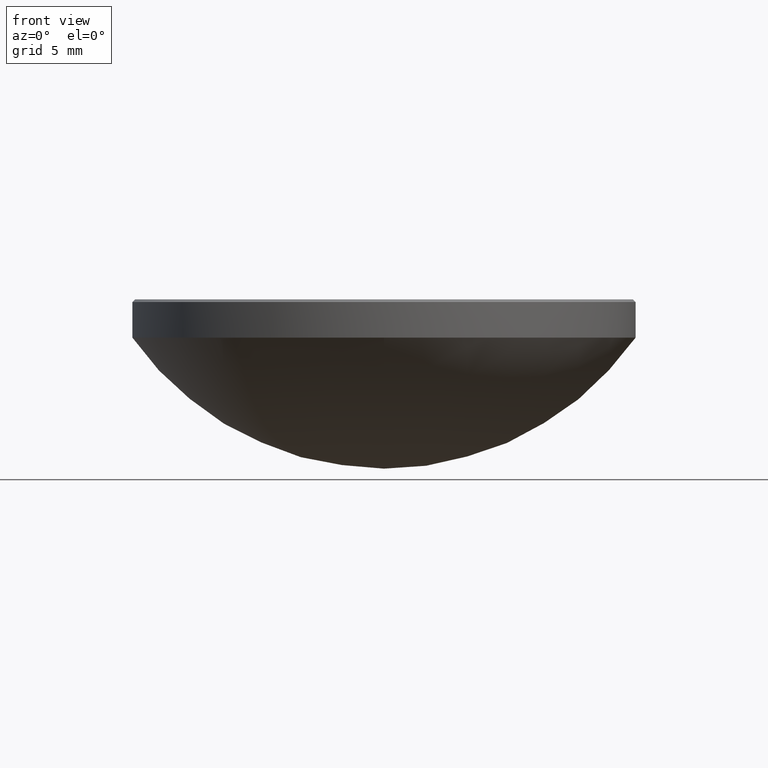
[diagram: clean part render]
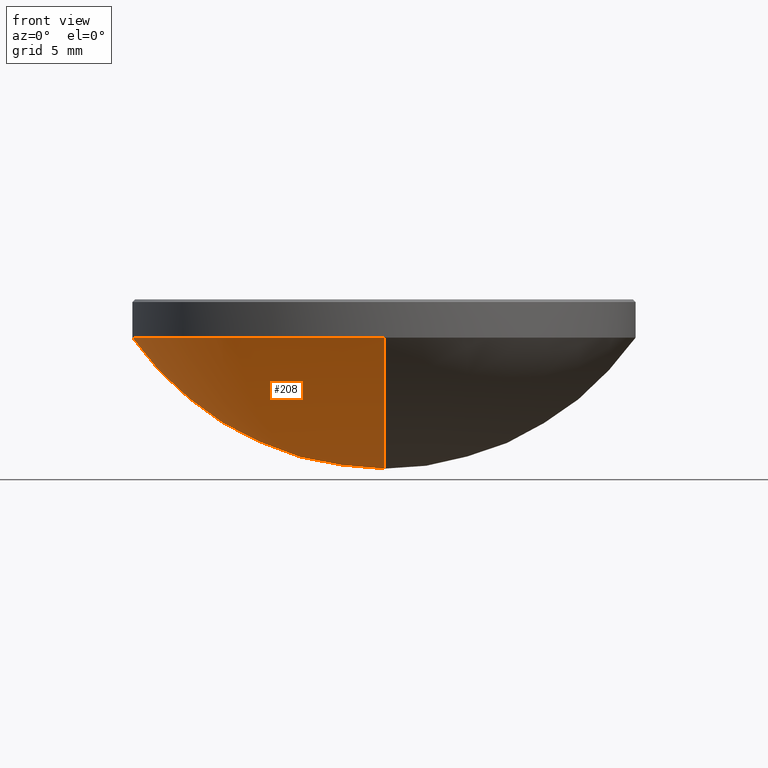
[diagram: same view with one face highlighted and labeled with its STEP entity id]
A machine part, front view. The second image highlights one B-rep face of the part: STEP entity #208.
In plain terms, the highlighted spherical surface has radius 15.5 mm.
Its self-contained STEP definition (entity closure, byte-faithful):
#7 = EDGE_CURVE ( 'NONE', #265, #219, #257, .T. ) ;
#13 = CARTESIAN_POINT ( 'NONE',  ( 0.000000000000000000, 12.69999999999999574, 10.00000000000000000 ) ) ;
#25 = AXIS2_PLACEMENT_3D ( 'NONE', #69, #237, #239 ) ;
#50 = EDGE_CURVE ( 'NONE', #111, #219, #100, .T. ) ;
#60 = EDGE_CURVE ( 'NONE', #111, #106, #86, .T. ) ;
#61 = DIRECTION ( 'NONE',  ( 0.000000000000000000, 1.000000000000000000, 0.000000000000000000 ) ) ;
#69 = CARTESIAN_POINT ( 'NONE',  ( 0.000000000000000000, 0.000000000000000000, 10.00000000000000000 ) ) ;
#73 = CARTESIAN_POINT ( 'NONE',  ( 0.000000000000000000, 0.000000000000000000, 18.88594395660922487 ) ) ;
#82 = CARTESIAN_POINT ( 'NONE',  ( -1.555301434917138038E-15, -12.69999999999999574, 10.00000000000000000 ) ) ;
#83 = DIRECTION ( 'NONE',  ( -1.000000000000000000, 0.000000000000000000, 0.000000000000000000 ) ) ;
#85 = CIRCLE ( 'NONE', #151, 12.69999999999999751 ) ;
#86 = CIRCLE ( 'NONE', #126, 15.49999999999999645 ) ;
#96 = CARTESIAN_POINT ( 'NONE',  ( 0.000000000000000000, 0.000000000000000000, 18.88594395660922487 ) ) ;
#100 = CIRCLE ( 'NONE', #206, 15.49999999999999645 ) ;
#103 = AXIS2_PLACEMENT_3D ( 'NONE', #274, #83, #61 ) ;
#106 = VERTEX_POINT ( 'NONE', #13 ) ;
#111 = VERTEX_POINT ( 'NONE', #156 ) ;
#113 = ORIENTED_EDGE ( 'NONE', *, *, #7, .F. ) ;
#116 = CARTESIAN_POINT ( 'NONE',  ( 0.000000000000000000, 0.000000000000000000, 10.00000000000000000 ) ) ;
#118 = EDGE_CURVE ( 'NONE', #106, #265, #85, .T. ) ;
#120 = SPHERICAL_SURFACE ( 'NONE', #103, 15.49999999999999645 ) ;
#126 = AXIS2_PLACEMENT_3D ( 'NONE', #73, #268, #162 ) ;
#139 = DIRECTION ( 'NONE',  ( 1.000000000000000000, 0.000000000000000000, 0.000000000000000000 ) ) ;
#151 = AXIS2_PLACEMENT_3D ( 'NONE', #116, #223, #139 ) ;
#156 = CARTESIAN_POINT ( 'NONE',  ( 0.000000000000000000, 9.491012693391985815E-16, 3.385943956609228422 ) ) ;
#162 = DIRECTION ( 'NONE',  ( 0.000000000000000000, 0.000000000000000000, -1.000000000000000000 ) ) ;
#171 = ORIENTED_EDGE ( 'NONE', *, *, #60, .F. ) ;
#179 = FACE_OUTER_BOUND ( 'NONE', #217, .T. ) ;
#193 = ORIENTED_EDGE ( 'NONE', *, *, #118, .F. ) ;
#206 = AXIS2_PLACEMENT_3D ( 'NONE', #96, #225, #246 ) ;
#208 = ADVANCED_FACE ( 'NONE', ( #179 ), #120, .T. ) ;
#217 = EDGE_LOOP ( 'NONE', ( #171, #264, #113, #193 ) ) ;
#219 = VERTEX_POINT ( 'NONE', #82 ) ;
#223 = DIRECTION ( 'NONE',  ( -0.000000000000000000, -0.000000000000000000, 1.000000000000000000 ) ) ;
#225 = DIRECTION ( 'NONE',  ( -1.000000000000000000, 1.224646799147353207E-16, 0.000000000000000000 ) ) ;
#237 = DIRECTION ( 'NONE',  ( -0.000000000000000000, -0.000000000000000000, 1.000000000000000000 ) ) ;
#239 = DIRECTION ( 'NONE',  ( 1.000000000000000000, 0.000000000000000000, 0.000000000000000000 ) ) ;
#246 = DIRECTION ( 'NONE',  ( -1.224646799147353207E-16, -1.000000000000000000, 0.000000000000000000 ) ) ;
#257 = CIRCLE ( 'NONE', #25, 12.69999999999999751 ) ;
#264 = ORIENTED_EDGE ( 'NONE', *, *, #50, .T. ) ;
#265 = VERTEX_POINT ( 'NONE', #273 ) ;
#268 = DIRECTION ( 'NONE',  ( 1.000000000000000000, -0.000000000000000000, 0.000000000000000000 ) ) ;
#273 = CARTESIAN_POINT ( 'NONE',  ( -12.69999999999999751, 0.000000000000000000, 10.00000000000000000 ) ) ;
#274 = CARTESIAN_POINT ( 'NONE',  ( 0.000000000000000000, 0.000000000000000000, 18.88594395660922487 ) ) ;